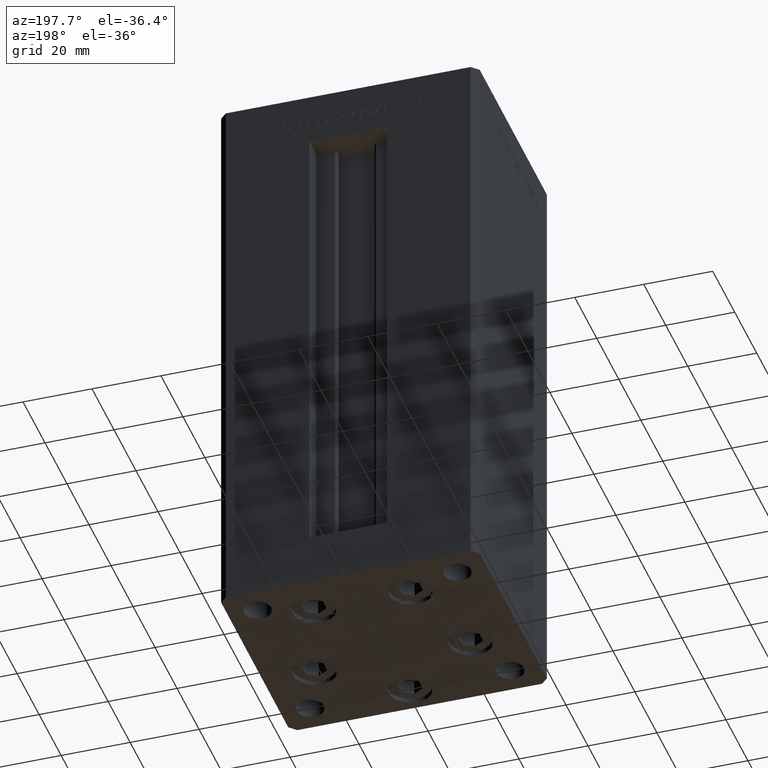
[diagram: clean part render]
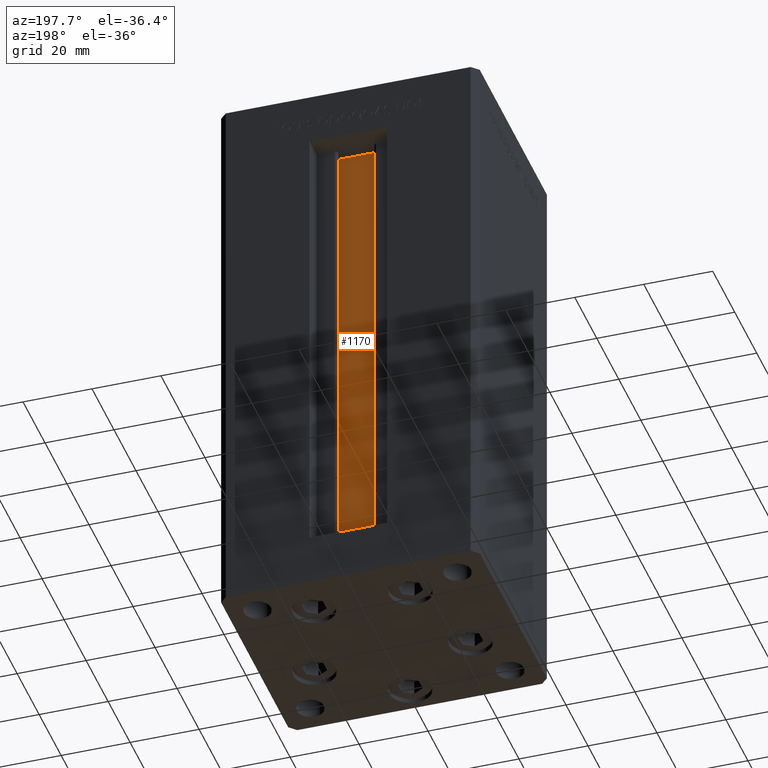
[diagram: same view with one face highlighted and labeled with its STEP entity id]
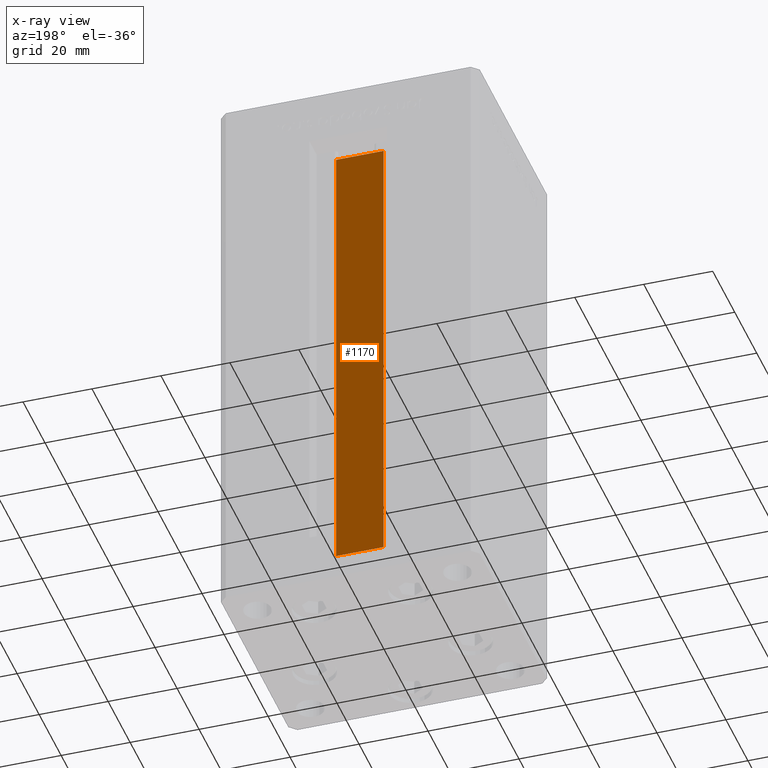
[diagram: x-ray of the same camera — body ghosted, the highlighted face saturated]
A machine part, auxiliary view. The second image highlights one B-rep face of the part: STEP entity #1170.
The next image is the same camera in x-ray: the body ghosted, the highlighted face saturated — about 0% of this face is hidden behind the body in this view.
In plain terms, the highlighted planar face has unit normal (0, -1, 0).
Its self-contained STEP definition (entity closure, byte-faithful):
#1170 = ADVANCED_FACE ( 'NONE', ( #10619 ), #2207, .F. ) ;
#2207 = PLANE ( 'NONE',  #46546 ) ;
#3873 = CARTESIAN_POINT ( 'NONE',  ( -6.876153656360466826, 21.99999999999986855, 136.0000000000000000 ) ) ;
#6108 = VERTEX_POINT ( 'NONE', #7692 ) ;
#6287 = DIRECTION ( 'NONE',  ( -1.000000000000000000, 0.000000000000000000, 0.000000000000000000 ) ) ;
#6662 = DIRECTION ( 'NONE',  ( 0.000000000000000000, -1.000000000000000000, -0.000000000000000000 ) ) ;
#6852 = CARTESIAN_POINT ( 'NONE',  ( 6.876153656360466826, 21.99999999999986855, 0.000000000000000000 ) ) ;
#7692 = CARTESIAN_POINT ( 'NONE',  ( -6.876153656360466826, 21.99999999999986855, 0.000000000000000000 ) ) ;
#8558 = EDGE_LOOP ( 'NONE', ( #22977, #31362, #20201, #13051 ) ) ;
#10619 = FACE_OUTER_BOUND ( 'NONE', #8558, .T. ) ;
#11404 = CARTESIAN_POINT ( 'NONE',  ( 6.876153656360466826, 21.99999999999986855, 0.000000000000000000 ) ) ;
#11827 = VECTOR ( 'NONE', #46742, 1000.000000000000000 ) ;
#13051 = ORIENTED_EDGE ( 'NONE', *, *, #13125, .F. ) ;
#13125 = EDGE_CURVE ( 'NONE', #50964, #19991, #18438, .T. ) ;
#14023 = VECTOR ( 'NONE', #6287, 1000.000000000000000 ) ;
#15789 = DIRECTION ( 'NONE',  ( 1.000000000000000000, -0.000000000000000000, -0.000000000000000000 ) ) ;
#18438 = LINE ( 'NONE', #46171, #14023 ) ;
#19095 = EDGE_CURVE ( 'NONE', #6108, #49217, #40096, .T. ) ;
#19991 = VERTEX_POINT ( 'NONE', #3873 ) ;
#20201 = ORIENTED_EDGE ( 'NONE', *, *, #38461, .T. ) ;
#20401 = LINE ( 'NONE', #28573, #28928 ) ;
#21449 = CARTESIAN_POINT ( 'NONE',  ( 6.876153656360466826, 21.99999999999986855, 136.0000000000000000 ) ) ;
#22977 = ORIENTED_EDGE ( 'NONE', *, *, #30844, .F. ) ;
#27442 = LINE ( 'NONE', #6852, #11827 ) ;
#28321 = DIRECTION ( 'NONE',  ( -0.000000000000000000, -0.000000000000000000, 1.000000000000000000 ) ) ;
#28573 = CARTESIAN_POINT ( 'NONE',  ( -6.876153656360466826, 21.99999999999986855, 0.000000000000000000 ) ) ;
#28724 = CARTESIAN_POINT ( 'NONE',  ( 6.876153656360466826, 21.99999999999986855, 0.000000000000000000 ) ) ;
#28928 = VECTOR ( 'NONE', #28321, 1000.000000000000000 ) ;
#30844 = EDGE_CURVE ( 'NONE', #49217, #50964, #27442, .T. ) ;
#31362 = ORIENTED_EDGE ( 'NONE', *, *, #19095, .F. ) ;
#35858 = CARTESIAN_POINT ( 'NONE',  ( 6.876153656360466826, 21.99999999999986855, 0.000000000000000000 ) ) ;
#38461 = EDGE_CURVE ( 'NONE', #6108, #19991, #20401, .T. ) ;
#39161 = DIRECTION ( 'NONE',  ( 0.000000000000000000, 0.000000000000000000, -1.000000000000000000 ) ) ;
#40096 = LINE ( 'NONE', #35858, #52096 ) ;
#46171 = CARTESIAN_POINT ( 'NONE',  ( 0.000000000000000000, 21.99999999999986855, 136.0000000000000000 ) ) ;
#46546 = AXIS2_PLACEMENT_3D ( 'NONE', #11404, #6662, #39161 ) ;
#46742 = DIRECTION ( 'NONE',  ( -0.000000000000000000, -0.000000000000000000, 1.000000000000000000 ) ) ;
#49217 = VERTEX_POINT ( 'NONE', #28724 ) ;
#50964 = VERTEX_POINT ( 'NONE', #21449 ) ;
#52096 = VECTOR ( 'NONE', #15789, 1000.000000000000000 ) ;